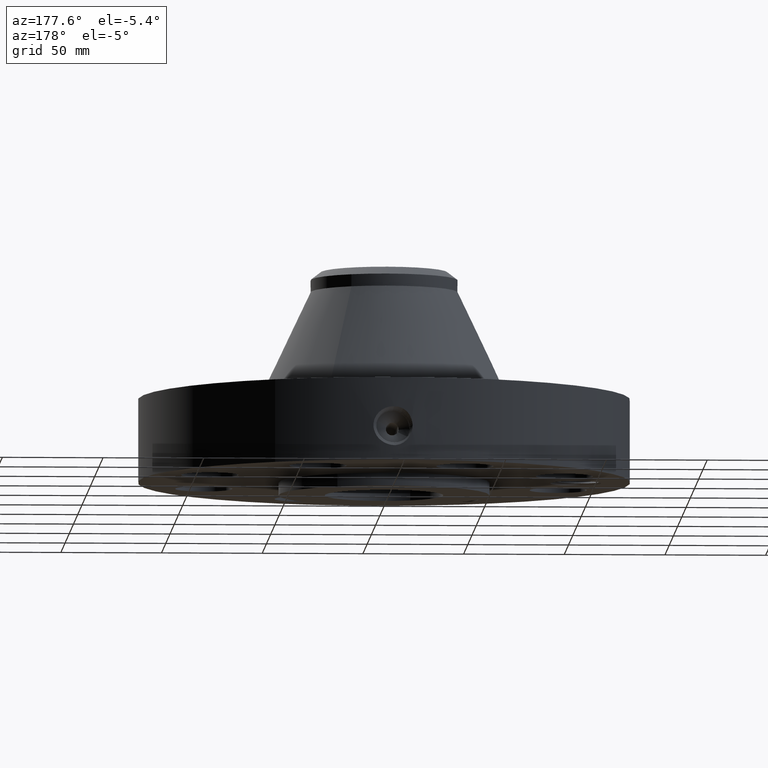
[diagram: clean part render]
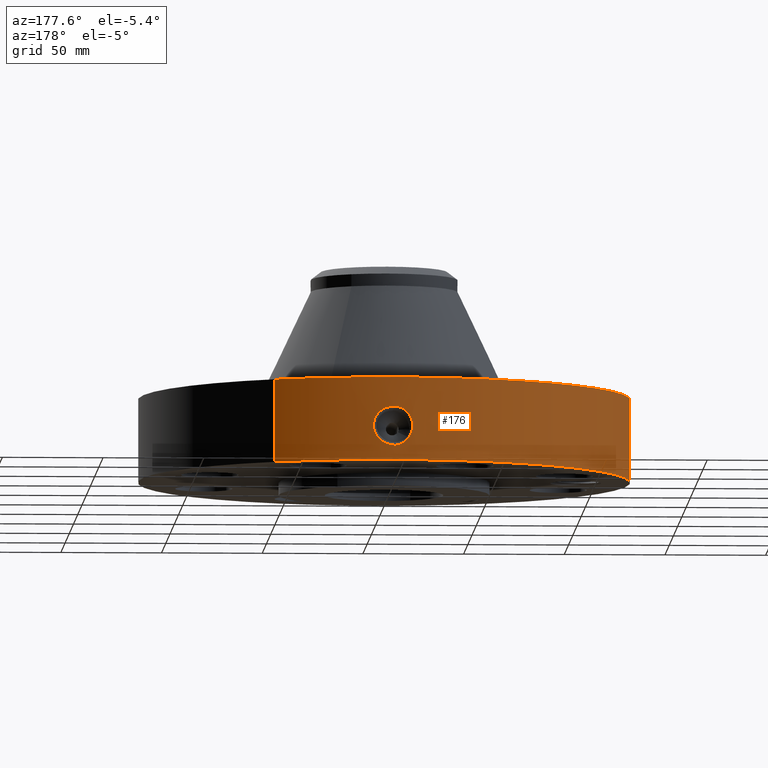
[diagram: same view with one face highlighted and labeled with its STEP entity id]
A machine part, auxiliary view. The second image highlights one B-rep face of the part: STEP entity #176.
In plain terms, the highlighted cylindrical surface (partial cylindrical patch) has radius 122.174 mm, axis along (0, 0, -1).
Its self-contained STEP definition (entity closure, byte-faithful):
#38=AXIS2_PLACEMENT_3D('Cylinder Axis2P3D',#35,#36,#37) ;
#42=AXIS2_PLACEMENT_3D('Circle Axis2P3D',#40,#41,$) ;
#58=AXIS2_PLACEMENT_3D('Circle Axis2P3D',#56,#57,$) ;
#35=CARTESIAN_POINT('Axis2P3D Location',(0.,0.,2.18500000001)) ;
#40=CARTESIAN_POINT('Axis2P3D Location',(0.,0.,0.250000000001)) ;
#44=CARTESIAN_POINT('Vertex',(-2.3060368407,-4.22117212271,0.250000000001)) ;
#46=CARTESIAN_POINT('Vertex',(2.3060368407,4.22117212271,0.250000000001)) ;
#49=CARTESIAN_POINT('Line Origine',(-2.3060368407,-4.22117212271,1.06)) ;
#53=CARTESIAN_POINT('Vertex',(-2.3060368407,-4.22117212271,1.87000000001)) ;
#56=CARTESIAN_POINT('Axis2P3D Location',(0.,0.,1.87000000001)) ;
#60=CARTESIAN_POINT('Vertex',(2.3060368407,4.22117212271,1.87000000001)) ;
#63=CARTESIAN_POINT('Line Origine',(2.3060368407,4.22117212271,1.06)) ;
#75=CARTESIAN_POINT('Control Point',(-0.0661363835526,4.80954529857,1.28787373735)) ;
#76=CARTESIAN_POINT('Control Point',(-0.0445883416903,4.80984160715,1.29197985415)) ;
#77=CARTESIAN_POINT('Control Point',(-0.0226550572619,4.80999667613,1.29407393736)) ;
#78=CARTESIAN_POINT('Control Point',(-0.000717057546531,4.80999994657,1.2941184969)) ;
#79=CARTESIAN_POINT('Vertex',(-0.0661112946985,4.80954591595,1.28787882817)) ;
#81=CARTESIAN_POINT('Vertex',(-0.000716838117892,4.8099999466,1.2941185071)) ;
#85=CARTESIAN_POINT('Control Point',(-0.0661111674008,4.80954564525,1.28787818261)) ;
#86=CARTESIAN_POINT('Control Point',(-0.10255844025,4.80904464745,1.28210764728)) ;
#87=CARTESIAN_POINT('Control Point',(-0.138037816401,4.80812864859,1.26986120789)) ;
#88=CARTESIAN_POINT('Control Point',(-0.170506472558,4.8069769651,1.25214305679)) ;
#89=CARTESIAN_POINT('Vertex',(-0.170506472558,4.8069769651,1.25214305679)) ;
#93=CARTESIAN_POINT('Control Point',(-0.0290043982747,4.80991255067,0.531043458971)) ;
#94=CARTESIAN_POINT('Control Point',(-0.0749239160828,4.80963565,0.536942695609)) ;
#95=CARTESIAN_POINT('Control Point',(-0.119697311337,4.80881765719,0.550227654477)) ;
#96=CARTESIAN_POINT('Control Point',(-0.161617402864,4.80752250204,0.570530801629)) ;
#97=CARTESIAN_POINT('Control Point',(-0.246169576495,4.80406795966,0.62891014586)) ;
#98=CARTESIAN_POINT('Control Point',(-0.306815626082,4.80034710441,0.710385198944)) ;
#99=CARTESIAN_POINT('Control Point',(-0.331776015579,4.79858756843,0.760223937647)) ;
#100=CARTESIAN_POINT('Control Point',(-0.36024769151,4.79650379611,0.852909084195)) ;
#101=CARTESIAN_POINT('Control Point',(-0.36108007351,4.79642355822,0.948205291525)) ;
#102=CARTESIAN_POINT('Control Point',(-0.356240011353,4.79679649904,0.989152023496)) ;
#103=CARTESIAN_POINT('Control Point',(-0.333983572331,4.79846337657,1.0779865939)) ;
#104=CARTESIAN_POINT('Control Point',(-0.287079136653,4.80154199449,1.15688015952)) ;
#105=CARTESIAN_POINT('Control Point',(-0.25403468736,4.80350959408,1.19581857484)) ;
#106=CARTESIAN_POINT('Control Point',(-0.214528499186,4.80541547635,1.22812022906)) ;
#107=CARTESIAN_POINT('Control Point',(-0.170506472558,4.8069769651,1.25214305679)) ;
#108=CARTESIAN_POINT('Vertex',(-0.0290043982747,4.80991255067,0.531043458971)) ;
#112=CARTESIAN_POINT('Control Point',(-0.0290043982747,4.80991255067,0.531043458971)) ;
#113=CARTESIAN_POINT('Control Point',(-0.0193291664143,4.80997089357,0.530854418857)) ;
#114=CARTESIAN_POINT('Control Point',(-0.00965254224404,4.8100000055,0.530964918496)) ;
#115=CARTESIAN_POINT('Control Point',(2.72878352603E-006,4.81000000002,0.531374667805)) ;
#116=CARTESIAN_POINT('Vertex',(2.7287835375E-006,4.81000000002,0.531374667805)) ;
#120=CARTESIAN_POINT('Control Point',(0.194572176487,4.80606301127,0.583845834778)) ;
#121=CARTESIAN_POINT('Control Point',(0.134832022831,4.80848157543,0.552031306746)) ;
#122=CARTESIAN_POINT('Control Point',(0.0678365440628,4.80999996154,0.534253392787)) ;
#123=CARTESIAN_POINT('Control Point',(2.72878352603E-006,4.81000000002,0.531374667805)) ;
#124=CARTESIAN_POINT('Vertex',(0.194572176487,4.80606301127,0.583845834778)) ;
#128=CARTESIAN_POINT('Control Point',(0.339648520063,4.79799321415,0.711044709016)) ;
#129=CARTESIAN_POINT('Control Point',(0.311639247585,4.79997598226,0.671098882294)) ;
#130=CARTESIAN_POINT('Control Point',(0.277013389782,4.80221127278,0.635884164627)) ;
#131=CARTESIAN_POINT('Control Point',(0.237466072879,4.80432646334,0.606688913078)) ;
#132=CARTESIAN_POINT('Control Point',(0.194572176487,4.80606301127,0.583845834778)) ;
#133=CARTESIAN_POINT('Vertex',(0.339648520063,4.79799321415,0.711044709016)) ;
#137=CARTESIAN_POINT('Control Point',(0.339648520063,4.79799321415,0.711044709016)) ;
#138=CARTESIAN_POINT('Control Point',(0.372745911423,4.79565025961,0.762239626975)) ;
#139=CARTESIAN_POINT('Control Point',(0.394857855451,4.79377645609,0.82026172822)) ;
#140=CARTESIAN_POINT('Control Point',(0.405089618056,4.79291168305,0.880383268009)) ;
#141=CARTESIAN_POINT('Vertex',(0.405089618056,4.79291168305,0.880383268009)) ;
#145=CARTESIAN_POINT('Control Point',(0.405089618056,4.79291168305,0.880383268009)) ;
#146=CARTESIAN_POINT('Control Point',(0.41107301188,4.79240597569,0.930533912874)) ;
#147=CARTESIAN_POINT('Control Point',(0.408213933149,4.79263821702,0.981647090764)) ;
#148=CARTESIAN_POINT('Control Point',(0.396081234052,4.79370836615,1.03150545523)) ;
#149=CARTESIAN_POINT('Control Point',(0.362696077297,4.79644916997,1.10747831829)) ;
#150=CARTESIAN_POINT('Control Point',(0.311278213848,4.79998544681,1.17035839566)) ;
#151=CARTESIAN_POINT('Control Point',(0.288787399264,4.80141213509,1.19262128557)) ;
#152=CARTESIAN_POINT('Control Point',(0.224261430207,4.80507887493,1.24470576413)) ;
#153=CARTESIAN_POINT('Control Point',(0.14893523445,4.80805353195,1.27818820564)) ;
#154=CARTESIAN_POINT('Control Point',(0.0996981900133,4.80936214464,1.29128339842)) ;
#155=CARTESIAN_POINT('Control Point',(0.0495375374374,4.8100002664,1.29658273782)) ;
#156=CARTESIAN_POINT('Control Point',(-2.58579355129E-005,4.80999999995,1.29415298437)) ;
#157=CARTESIAN_POINT('Vertex',(-2.58579355156E-005,4.80999999995,1.29415298437)) ;
#161=CARTESIAN_POINT('Control Point',(-0.00071683810624,4.8099999466,1.29411850709)) ;
#162=CARTESIAN_POINT('Control Point',(-0.000371371190192,4.80999999809,1.29413604624)) ;
#163=CARTESIAN_POINT('Control Point',(-2.58579431612E-005,4.80999999995,1.29415298437)) ;
#36=DIRECTION('Axis2P3D Direction',(0.,0.,-0.0393700787402)) ;
#37=DIRECTION('Axis2P3D XDirection',(0.0188750212049,0.0345504945626,0.)) ;
#41=DIRECTION('Axis2P3D Direction',(0.,0.,-0.0393700787402)) ;
#50=DIRECTION('Vector Direction',(0.,0.,-0.0393700787402)) ;
#57=DIRECTION('Axis2P3D Direction',(0.,0.,-0.0393700787402)) ;
#64=DIRECTION('Vector Direction',(0.,0.,-0.0393700787402)) ;
#51=VECTOR('Line Direction',#50,0.0393700787402) ;
#65=VECTOR('Line Direction',#64,0.0393700787402) ;
#69=ORIENTED_EDGE('',*,*,#48,.F.) ;
#70=ORIENTED_EDGE('',*,*,#55,.T.) ;
#71=ORIENTED_EDGE('',*,*,#62,.T.) ;
#72=ORIENTED_EDGE('',*,*,#67,.F.) ;
#166=ORIENTED_EDGE('',*,*,#83,.F.) ;
#167=ORIENTED_EDGE('',*,*,#91,.T.) ;
#168=ORIENTED_EDGE('',*,*,#110,.F.) ;
#169=ORIENTED_EDGE('',*,*,#118,.T.) ;
#170=ORIENTED_EDGE('',*,*,#126,.F.) ;
#171=ORIENTED_EDGE('',*,*,#135,.F.) ;
#172=ORIENTED_EDGE('',*,*,#143,.T.) ;
#173=ORIENTED_EDGE('',*,*,#159,.T.) ;
#174=ORIENTED_EDGE('',*,*,#164,.F.) ;
#175=FACE_BOUND('',#165,.T.) ;
#176=ADVANCED_FACE('PartBody',(#73,#175),#39,.T.) ;
#74=B_SPLINE_CURVE_WITH_KNOTS('',3,(#75,#76,#77,#78),.UNSPECIFIED.,.F.,.U.,(4,4),(4.08821314115,6.52203864548),.UNSPECIFIED.) ;
#84=B_SPLINE_CURVE_WITH_KNOTS('',3,(#85,#86,#87,#88),.UNSPECIFIED.,.F.,.U.,(4,4),(0.,4.14620402265),.UNSPECIFIED.) ;
#92=B_SPLINE_CURVE_WITH_KNOTS('',5,(#93,#94,#95,#96,#97,#98,#99,#100,#101,#102,#103,#104,#105,#106,#107),.UNSPECIFIED.,.F.,.U.,(6,3,3,3,6),(0.,8.04666309326,18.00025349,25.6058567311,34.9751134369),.UNSPECIFIED.) ;
#111=B_SPLINE_CURVE_WITH_KNOTS('',3,(#112,#113,#114,#115),.UNSPECIFIED.,.F.,.U.,(4,4),(0.,1.0090887182),.UNSPECIFIED.) ;
#119=B_SPLINE_CURVE_WITH_KNOTS('',3,(#120,#121,#122,#123),.UNSPECIFIED.,.F.,.U.,(4,4),(0.,7.08942686177),.UNSPECIFIED.) ;
#127=B_SPLINE_CURVE_WITH_KNOTS('',4,(#128,#129,#130,#131,#132),.UNSPECIFIED.,.F.,.U.,(5,5),(0.,6.78701832556),.UNSPECIFIED.) ;
#136=B_SPLINE_CURVE_WITH_KNOTS('',3,(#137,#138,#139,#140),.UNSPECIFIED.,.F.,.U.,(4,4),(0.,6.36003946642),.UNSPECIFIED.) ;
#144=B_SPLINE_CURVE_WITH_KNOTS('',5,(#145,#146,#147,#148,#149,#150,#151,#152,#153,#154,#155,#156),.UNSPECIFIED.,.F.,.U.,(6,3,3,6),(0.,8.77851509028,14.422227746,23.6866522887),.UNSPECIFIED.) ;
#160=B_SPLINE_CURVE_WITH_KNOTS('',2,(#161,#162,#163),.UNSPECIFIED.,.F.,.U.,(3,3),(1.10100361363,1.12683704645),.UNSPECIFIED.) ;
#43=CIRCLE('generated circle',#42,4.81000000002) ;
#59=CIRCLE('generated circle',#58,4.81000000002) ;
#39=CYLINDRICAL_SURFACE('generated cylinder',#38,4.81000000002) ;
#48=EDGE_CURVE('',#45,#47,#43,.T.) ;
#55=EDGE_CURVE('',#45,#54,#52,.F.) ;
#62=EDGE_CURVE('',#54,#61,#59,.T.) ;
#67=EDGE_CURVE('',#47,#61,#66,.F.) ;
#83=EDGE_CURVE('',#80,#82,#74,.T.) ;
#91=EDGE_CURVE('',#80,#90,#84,.T.) ;
#110=EDGE_CURVE('',#109,#90,#92,.T.) ;
#118=EDGE_CURVE('',#109,#117,#111,.T.) ;
#126=EDGE_CURVE('',#125,#117,#119,.T.) ;
#135=EDGE_CURVE('',#134,#125,#127,.T.) ;
#143=EDGE_CURVE('',#134,#142,#136,.T.) ;
#159=EDGE_CURVE('',#142,#158,#144,.T.) ;
#164=EDGE_CURVE('',#82,#158,#160,.T.) ;
#68=EDGE_LOOP('',(#69,#70,#71,#72)) ;
#165=EDGE_LOOP('',(#166,#167,#168,#169,#170,#171,#172,#173,#174)) ;
#73=FACE_OUTER_BOUND('',#68,.T.) ;
#52=LINE('Line',#49,#51) ;
#66=LINE('Line',#63,#65) ;
#45=VERTEX_POINT('',#44) ;
#47=VERTEX_POINT('',#46) ;
#54=VERTEX_POINT('',#53) ;
#61=VERTEX_POINT('',#60) ;
#80=VERTEX_POINT('',#79) ;
#82=VERTEX_POINT('',#81) ;
#90=VERTEX_POINT('',#89) ;
#109=VERTEX_POINT('',#108) ;
#117=VERTEX_POINT('',#116) ;
#125=VERTEX_POINT('',#124) ;
#134=VERTEX_POINT('',#133) ;
#142=VERTEX_POINT('',#141) ;
#158=VERTEX_POINT('',#157) ;